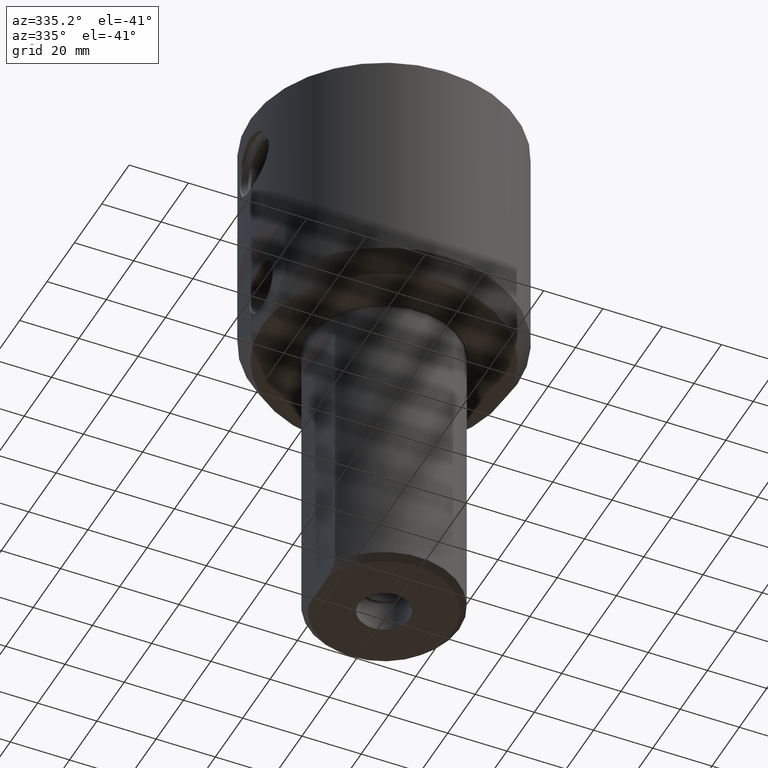
[diagram: clean part render]
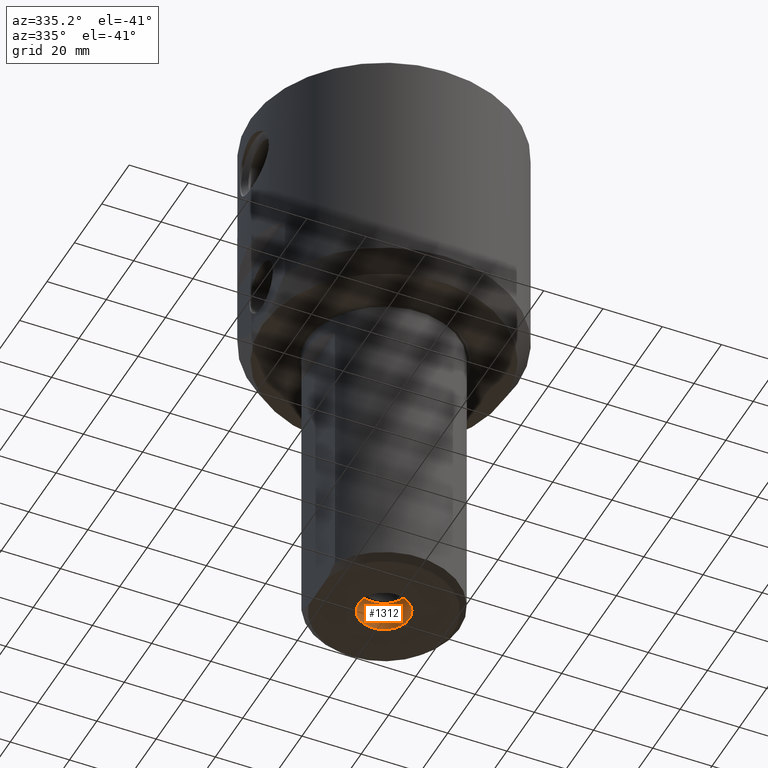
[diagram: same view with one face highlighted and labeled with its STEP entity id]
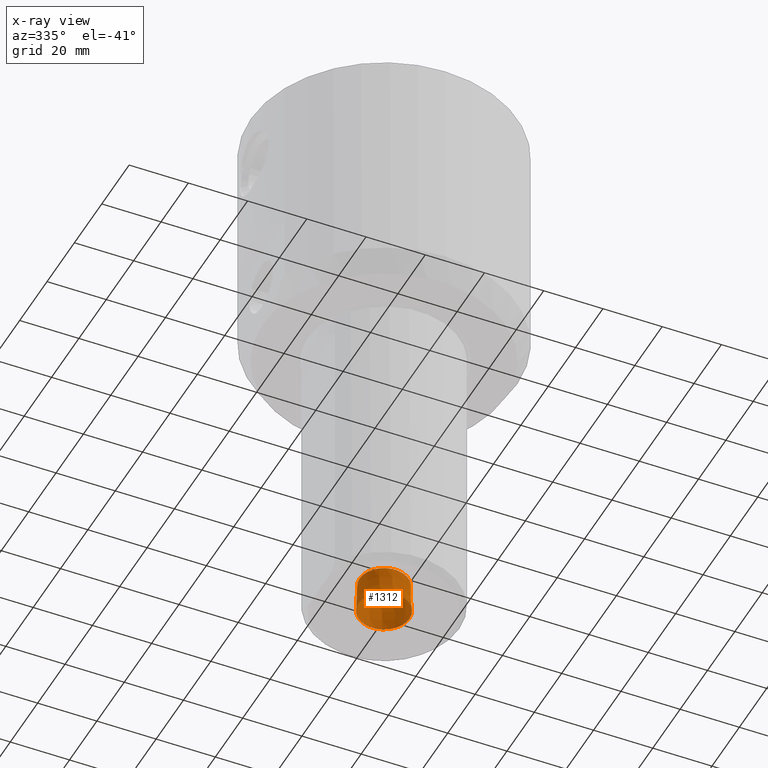
[diagram: x-ray of the same camera — body ghosted, the highlighted face saturated]
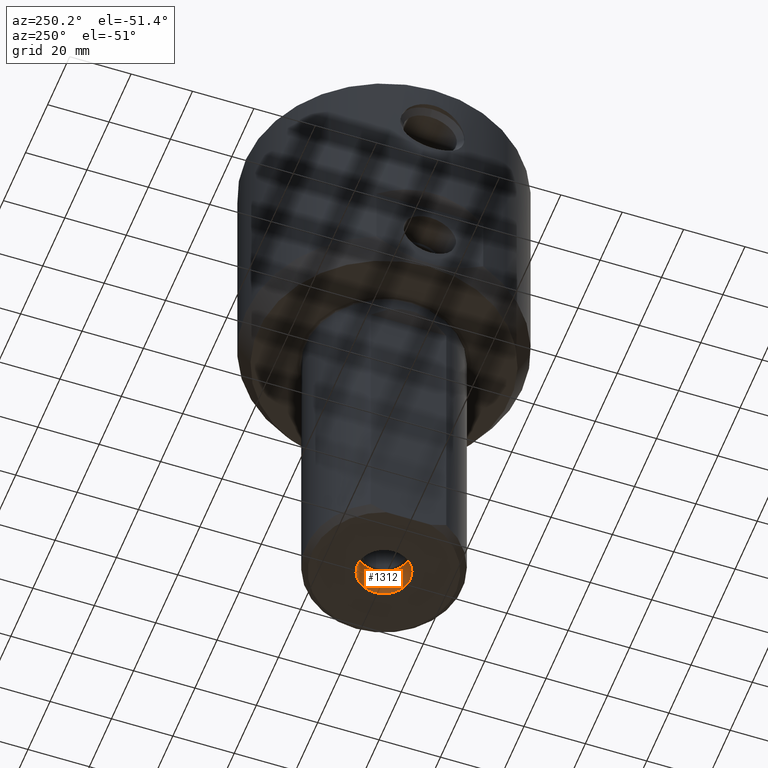
[diagram: same view with one face highlighted and labeled with its STEP entity id]
A machine part, auxiliary view. The second image highlights one B-rep face of the part: STEP entity #1312.
The next image is the same camera in x-ray: the body ghosted, the highlighted face saturated — about 0% of this face is hidden behind the body in this view.
A second angle (auxiliary view) of the same face is appended — the face is thin or edge-on in the first view.
In plain terms, the highlighted conical surface has half-angle 1.715 deg.
Its self-contained STEP definition (entity closure, byte-faithful):
#19 = CARTESIAN_POINT ( 'NONE',  ( 0.0000000000000000000, 0.0000000000000000000, -174.2699999999999818 ) ) ;
#184 = DIRECTION ( 'NONE',  ( -0.0000000000000000000, -0.0000000000000000000, -1.000000000000000000 ) ) ;
#303 = VERTEX_POINT ( 'NONE', #1777 ) ;
#342 = DIRECTION ( 'NONE',  ( -1.000000000000000000, 0.0000000000000000000, 0.0000000000000000000 ) ) ;
#613 = DIRECTION ( 'NONE',  ( -0.0000000000000000000, -0.0000000000000000000, -1.000000000000000000 ) ) ;
#648 = AXIS2_PLACEMENT_3D ( 'NONE', #19, #1015, #1991 ) ;
#667 = AXIS2_PLACEMENT_3D ( 'NONE', #1005, #184, #342 ) ;
#712 = EDGE_LOOP ( 'NONE', ( #1442 ) ) ;
#995 = EDGE_LOOP ( 'NONE', ( #1516 ) ) ;
#1005 = CARTESIAN_POINT ( 'NONE',  ( 0.0000000000000000000, 0.0000000000000000000, -184.5999999999999943 ) ) ;
#1015 = DIRECTION ( 'NONE',  ( -0.0000000000000000000, -0.0000000000000000000, -1.000000000000000000 ) ) ;
#1120 = CARTESIAN_POINT ( 'NONE',  ( -8.572499999999999787, 0.0000000000000000000, -184.5999999999999943 ) ) ;
#1312 = ADVANCED_FACE ( 'NONE', ( #2078, #1840 ), #1618, .F. ) ;
#1442 = ORIENTED_EDGE ( 'NONE', *, *, #1523, .T. ) ;
#1507 = CIRCLE ( 'NONE', #2127, 8.572499999999999787 ) ;
#1516 = ORIENTED_EDGE ( 'NONE', *, *, #1765, .F. ) ;
#1523 = EDGE_CURVE ( 'NONE', #2074, #2074, #1507, .T. ) ;
#1618 = CONICAL_SURFACE ( 'NONE', #667, 8.572499999999999787, 0.02993239667170256510 ) ;
#1665 = CIRCLE ( 'NONE', #648, 8.263205966368415645 ) ;
#1765 = EDGE_CURVE ( 'NONE', #303, #303, #1665, .T. ) ;
#1777 = CARTESIAN_POINT ( 'NONE',  ( -8.263205966368415645, 0.0000000000000000000, -174.2699999999999818 ) ) ;
#1840 = FACE_OUTER_BOUND ( 'NONE', #712, .T. ) ;
#1991 = DIRECTION ( 'NONE',  ( -1.000000000000000000, 0.0000000000000000000, 0.0000000000000000000 ) ) ;
#2071 = CARTESIAN_POINT ( 'NONE',  ( 0.0000000000000000000, 0.0000000000000000000, -184.5999999999999943 ) ) ;
#2074 = VERTEX_POINT ( 'NONE', #1120 ) ;
#2078 = FACE_BOUND ( 'NONE', #995, .T. ) ;
#2084 = DIRECTION ( 'NONE',  ( -1.000000000000000000, 0.0000000000000000000, 0.0000000000000000000 ) ) ;
#2127 = AXIS2_PLACEMENT_3D ( 'NONE', #2071, #613, #2084 ) ;